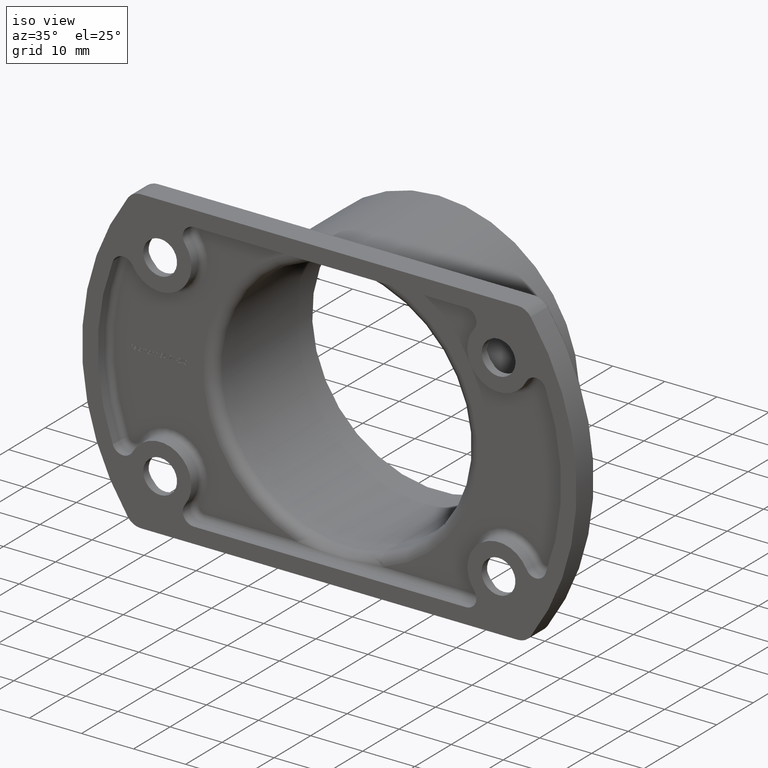
[diagram: clean part render]
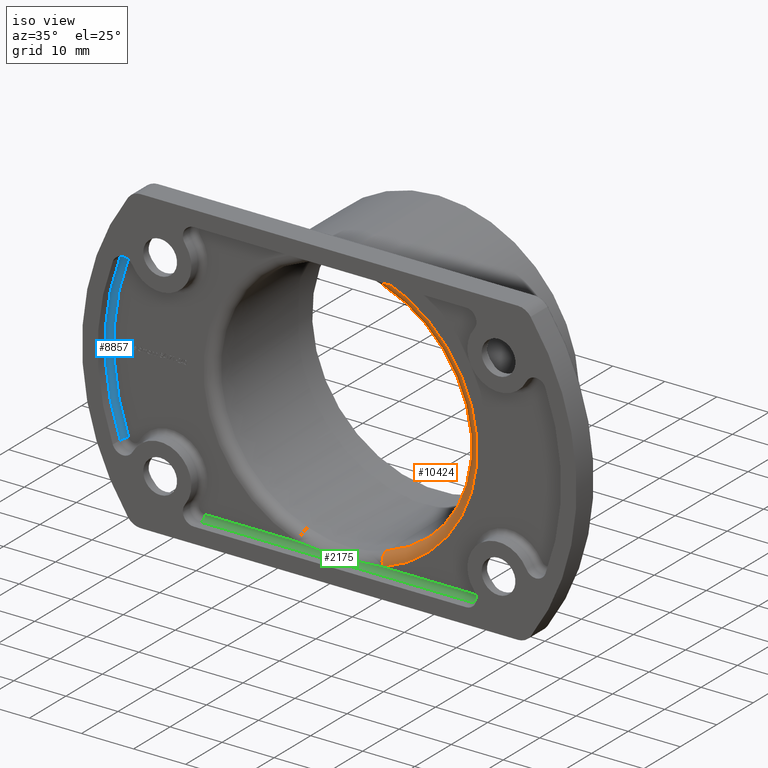
[diagram: same view with three faces highlighted in distinct colors, each labeled with its STEP entity id]
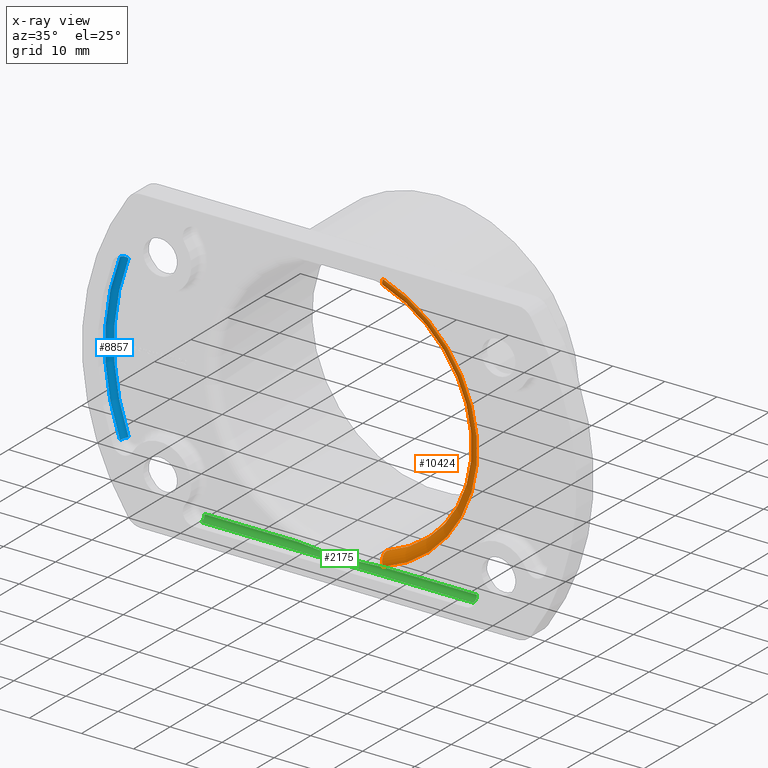
[diagram: x-ray of the same camera — body ghosted, the three highlighted faces saturated]
A machine part, iso view with three faces highlighted in distinct colors.
The next image is the same camera in x-ray (body ghosted, the three faces saturated) — at least one of them is partly hidden behind the body in this view.
Their STEP definitions:

[orange] entity #10424 — the highlighted toroidal blend (fillet) surface has major radius 26.3 mm and minor (blend) radius 2 mm.
#17 = DIRECTION ( 'NONE',  ( -8.881784197001252323E-16, 0.000000000000000000, -1.000000000000000000 ) ) ;
#259 = CARTESIAN_POINT ( 'NONE',  ( 8.166394553289741509, 3.000000000000000000, 24.99999999999999645 ) ) ;
#364 = ORIENTED_EDGE ( 'NONE', *, *, #13438, .F. ) ;
#550 = CARTESIAN_POINT ( 'NONE',  ( 8.166394553289727298, 5.000000000000000000, -24.99999999999999645 ) ) ;
#919 = EDGE_LOOP ( 'NONE', ( #2003, #11204, #8052, #364 ) ) ;
#984 = CARTESIAN_POINT ( 'NONE',  ( 0.000000000000000000, 5.000000000000000888, 0.000000000000000000 ) ) ;
#1272 = CIRCLE ( 'NONE', #8438, 1.999999999999999778 ) ;
#1767 = DIRECTION ( 'NONE',  ( 0.000000000000000000, -1.000000000000000000, 0.000000000000000000 ) ) ;
#2003 = ORIENTED_EDGE ( 'NONE', *, *, #10314, .T. ) ;
#2092 = DIRECTION ( 'NONE',  ( -0.000000000000000000, 1.000000000000000000, -0.000000000000000000 ) ) ;
#2163 = AXIS2_PLACEMENT_3D ( 'NONE', #8005, #1767, #2797 ) ;
#2612 = DIRECTION ( 'NONE',  ( 0.9505703422053231044, -5.386477697977502570E-16, 0.3105092986041723679 ) ) ;
#2689 = TOROIDAL_SURFACE ( 'NONE', #2163, 26.30000000000000426, 2.000000000000000000 ) ;
#2797 = DIRECTION ( 'NONE',  ( 0.000000000000000000, 0.000000000000000000, -1.000000000000000000 ) ) ;
#3918 = DIRECTION ( 'NONE',  ( 0.3105092986041731451, 0.000000000000000000, 0.9505703422053227714 ) ) ;
#4222 = DIRECTION ( 'NONE',  ( 0.000000000000000000, 0.000000000000000000, -1.000000000000000000 ) ) ;
#4603 = CARTESIAN_POINT ( 'NONE',  ( 7.545375956081382895, 5.000000000000000888, -23.09885931558935113 ) ) ;
#4678 = CARTESIAN_POINT ( 'NONE',  ( 7.545375956081393554, 5.000000000000000888, 23.09885931558934757 ) ) ;
#6513 = EDGE_CURVE ( 'NONE', #11804, #10189, #11574, .T. ) ;
#8005 = CARTESIAN_POINT ( 'NONE',  ( 0.000000000000000000, 5.000000000000000888, 0.000000000000000000 ) ) ;
#8049 = VERTEX_POINT ( 'NONE', #4603 ) ;
#8052 = ORIENTED_EDGE ( 'NONE', *, *, #8196, .F. ) ;
#8072 = AXIS2_PLACEMENT_3D ( 'NONE', #9555, #2092, #17 ) ;
#8196 = EDGE_CURVE ( 'NONE', #9639, #11804, #1272, .T. ) ;
#8310 = CIRCLE ( 'NONE', #11813, 24.30000000000000071 ) ;
#8438 = AXIS2_PLACEMENT_3D ( 'NONE', #13165, #13120, #3918 ) ;
#9241 = CIRCLE ( 'NONE', #12467, 1.999999999999999112 ) ;
#9440 = DIRECTION ( 'NONE',  ( 0.000000000000000000, -1.000000000000000000, 0.000000000000000000 ) ) ;
#9555 = CARTESIAN_POINT ( 'NONE',  ( 0.000000000000000000, 3.000000000000000000, 0.000000000000000000 ) ) ;
#9639 = VERTEX_POINT ( 'NONE', #4678 ) ;
#9918 = DIRECTION ( 'NONE',  ( 0.3105092986041723679, 0.000000000000000000, -0.9505703422053231044 ) ) ;
#10189 = VERTEX_POINT ( 'NONE', #12786 ) ;
#10314 = EDGE_CURVE ( 'NONE', #8049, #10189, #9241, .T. ) ;
#10424 = ADVANCED_FACE ( 'NONE', ( #12169 ), #2689, .T. ) ;
#11204 = ORIENTED_EDGE ( 'NONE', *, *, #6513, .F. ) ;
#11574 = CIRCLE ( 'NONE', #8072, 26.30000000000000426 ) ;
#11804 = VERTEX_POINT ( 'NONE', #259 ) ;
#11813 = AXIS2_PLACEMENT_3D ( 'NONE', #984, #9440, #4222 ) ;
#12169 = FACE_OUTER_BOUND ( 'NONE', #919, .T. ) ;
#12467 = AXIS2_PLACEMENT_3D ( 'NONE', #550, #2612, #9918 ) ;
#12786 = CARTESIAN_POINT ( 'NONE',  ( 8.166394553289727298, 3.000000000000000000, -25.00000000000000000 ) ) ;
#13120 = DIRECTION ( 'NONE',  ( -0.9505703422053229934, 5.386477697977507500E-16, 0.3105092986041727565 ) ) ;
#13165 = CARTESIAN_POINT ( 'NONE',  ( 8.166394553289739733, 5.000000000000000888, 24.99999999999999289 ) ) ;
#13438 = EDGE_CURVE ( 'NONE', #8049, #9639, #8310, .T. ) ;

[blue] entity #8857 — the highlighted toroidal blend (fillet) surface has major radius 44 mm and minor (blend) radius 1 mm.
#387 = ORIENTED_EDGE ( 'NONE', *, *, #4611, .F. ) ;
#509 = VERTEX_POINT ( 'NONE', #4135 ) ;
#830 = CARTESIAN_POINT ( 'NONE',  ( 0.5000000000000073275, 2.000000000000000000, -3.122502256758252770E-14 ) ) ;
#896 = ORIENTED_EDGE ( 'NONE', *, *, #4710, .F. ) ;
#1079 = DIRECTION ( 'NONE',  ( 0.000000000000000000, 0.000000000000000000, -1.000000000000000000 ) ) ;
#1365 = AXIS2_PLACEMENT_3D ( 'NONE', #830, #3845, #5891 ) ;
#2011 = VERTEX_POINT ( 'NONE', #10131 ) ;
#2540 = EDGE_CURVE ( 'NONE', #10132, #5435, #2968, .T. ) ;
#2964 = EDGE_CURVE ( 'NONE', #2011, #5435, #7353, .T. ) ;
#2968 = CIRCLE ( 'NONE', #13179, 1.000000000000002220 ) ;
#3398 = ORIENTED_EDGE ( 'NONE', *, *, #2540, .T. ) ;
#3845 = DIRECTION ( 'NONE',  ( 0.000000000000000000, -1.000000000000000000, 0.000000000000000000 ) ) ;
#4056 = DIRECTION ( 'NONE',  ( 0.000000000000000000, -1.000000000000000000, 0.000000000000000000 ) ) ;
#4135 = CARTESIAN_POINT ( 'NONE',  ( -40.66282089980679615, 3.000000000000000000, -15.54420070542160026 ) ) ;
#4147 = EDGE_LOOP ( 'NONE', ( #3398, #4893, #387, #896 ) ) ;
#4611 = EDGE_CURVE ( 'NONE', #509, #2011, #5196, .T. ) ;
#4710 = EDGE_CURVE ( 'NONE', #10132, #509, #6000, .T. ) ;
#4893 = ORIENTED_EDGE ( 'NONE', *, *, #2964, .F. ) ;
#4982 = FACE_OUTER_BOUND ( 'NONE', #4147, .T. ) ;
#5091 = AXIS2_PLACEMENT_3D ( 'NONE', #9944, #8849, #11960 ) ;
#5152 = CARTESIAN_POINT ( 'NONE',  ( 0.5000000000000073275, 2.000000000000000000, -3.122502256758252770E-14 ) ) ;
#5196 = CIRCLE ( 'NONE', #5091, 1.000000000000001776 ) ;
#5435 = VERTEX_POINT ( 'NONE', #9715 ) ;
#5629 = TOROIDAL_SURFACE ( 'NONE', #1365, 44.00000000000000000, 1.000000000000000000 ) ;
#5854 = AXIS2_PLACEMENT_3D ( 'NONE', #5152, #6243, #1079 ) ;
#5891 = DIRECTION ( 'NONE',  ( 0.000000000000000000, 0.000000000000000000, -1.000000000000000000 ) ) ;
#6000 = CIRCLE ( 'NONE', #11906, 44.00000000000000000 ) ;
#6243 = DIRECTION ( 'NONE',  ( -0.000000000000000000, 1.000000000000000000, -0.000000000000000000 ) ) ;
#7353 = CIRCLE ( 'NONE', #5854, 45.00000000000000000 ) ;
#8650 = CARTESIAN_POINT ( 'NONE',  ( -40.66282089980678194, 3.000000000000000000, 15.54420070542157362 ) ) ;
#8849 = DIRECTION ( 'NONE',  ( -0.3532772887595772016, 0.000000000000000000, 0.9355186568137925374 ) ) ;
#8857 = ADVANCED_FACE ( 'NONE', ( #4982 ), #5629, .F. ) ;
#9270 = CARTESIAN_POINT ( 'NONE',  ( 0.5000000000000073275, 3.000000000000000000, -3.122502256758252770E-14 ) ) ;
#9715 = CARTESIAN_POINT ( 'NONE',  ( -41.59833955662057292, 2.000000000000000000, 15.89747799418115370 ) ) ;
#9944 = CARTESIAN_POINT ( 'NONE',  ( -40.66282089980679615, 2.000000000000000000, -15.54420070542160026 ) ) ;
#10131 = CARTESIAN_POINT ( 'NONE',  ( -41.59833955662058713, 2.000000000000000000, -15.89747799418117857 ) ) ;
#10132 = VERTEX_POINT ( 'NONE', #8650 ) ;
#10414 = DIRECTION ( 'NONE',  ( 0.000000000000000000, 0.000000000000000000, -1.000000000000000000 ) ) ;
#11906 = AXIS2_PLACEMENT_3D ( 'NONE', #9270, #4056, #10414 ) ;
#11960 = DIRECTION ( 'NONE',  ( 0.9355186568137924263, 0.000000000000000000, 0.3532772887595772016 ) ) ;
#12245 = CARTESIAN_POINT ( 'NONE',  ( -40.66282089980678194, 2.000000000000000000, 15.54420070542157362 ) ) ;
#13179 = AXIS2_PLACEMENT_3D ( 'NONE', #12245, #13270, #13321 ) ;
#13270 = DIRECTION ( 'NONE',  ( 0.3532772887595801992, -0.000000000000000000, 0.9355186568137912051 ) ) ;
#13321 = DIRECTION ( 'NONE',  ( 0.9355186568137919823, 0.000000000000000000, -0.3532772887595787559 ) ) ;

[green] entity #2175 — the highlighted cylindrical surface (edge-blend (fillet) strip) has radius 1 mm, axis along (1, 0, 0).
#69 = VERTEX_POINT ( 'NONE', #4402 ) ;
#273 = DIRECTION ( 'NONE',  ( 1.000000000000000000, -0.000000000000000000, 0.000000000000000000 ) ) ;
#699 = EDGE_CURVE ( 'NONE', #4299, #69, #9508, .T. ) ;
#961 = CARTESIAN_POINT ( 'NONE',  ( 2.726546648758453095, 2.920409081203906521, -25.39819552564682326 ) ) ;
#969 = ORIENTED_EDGE ( 'NONE', *, *, #5749, .F. ) ;
#1398 = ORIENTED_EDGE ( 'NONE', *, *, #6263, .F. ) ;
#1696 = AXIS2_PLACEMENT_3D ( 'NONE', #11666, #273, #6451 ) ;
#1814 = CARTESIAN_POINT ( 'NONE',  ( 26.25500200160159991, 2.000000000000000000, -25.00000000000000000 ) ) ;
#2059 = B_SPLINE_CURVE_WITH_KNOTS ( 'NONE', 3,
 ( #8089, #12193, #7129, #961, #6114, #5922, #4059, #9275, #5968, #12374 ),
 .UNSPECIFIED., .F., .F.,
 ( 4, 2, 2, 2, 4 ),
 ( 0.000000000000000000, 0.004091177721163233826, 0.008182355442326467651, 0.01227353316348969887, 0.01636471088465293183 ),
 .UNSPECIFIED. ) ;
#2175 = ADVANCED_FACE ( 'NONE', ( #10794 ), #7519, .F. ) ;
#2209 = AXIS2_PLACEMENT_3D ( 'NONE', #6592, #3412, #11850 ) ;
#2840 = DIRECTION ( 'NONE',  ( 1.000000000000000000, -0.000000000000000000, 0.000000000000000000 ) ) ;
#3412 = DIRECTION ( 'NONE',  ( 1.000000000000000000, 0.000000000000000000, 0.000000000000000000 ) ) ;
#3936 = DIRECTION ( 'NONE',  ( 0.000000000000000000, 0.000000000000000000, -1.000000000000000000 ) ) ;
#4059 = CARTESIAN_POINT ( 'NONE',  ( -2.726641587798411592, 2.920411768480568604, -25.39818068317799060 ) ) ;
#4187 = EDGE_CURVE ( 'NONE', #4669, #7443, #11741, .T. ) ;
#4299 = VERTEX_POINT ( 'NONE', #10429 ) ;
#4402 = CARTESIAN_POINT ( 'NONE',  ( -8.166394553289727298, 3.000000000000000000, -25.00000000000000000 ) ) ;
#4512 = ORIENTED_EDGE ( 'NONE', *, *, #699, .F. ) ;
#4618 = ORIENTED_EDGE ( 'NONE', *, *, #10575, .F. ) ;
#4669 = VERTEX_POINT ( 'NONE', #9225 ) ;
#5040 = CIRCLE ( 'NONE', #1696, 1.000000000000000888 ) ;
#5749 = EDGE_CURVE ( 'NONE', #10189, #7443, #12391, .T. ) ;
#5765 = VERTEX_POINT ( 'NONE', #10851 ) ;
#5922 = CARTESIAN_POINT ( 'NONE',  ( -1.364580291582981220, 2.901246482696176354, -25.43330679465470112 ) ) ;
#5968 = CARTESIAN_POINT ( 'NONE',  ( -6.809751863886553735, 3.000000000000008438, -25.14771839292670563 ) ) ;
#6114 = CARTESIAN_POINT ( 'NONE',  ( 1.361509632610039544, 2.901220976281781549, -25.43335984213570100 ) ) ;
#6263 = EDGE_CURVE ( 'NONE', #5765, #4299, #5040, .T. ) ;
#6398 = EDGE_LOOP ( 'NONE', ( #969, #10310, #4512, #1398, #4618, #9215 ) ) ;
#6451 = DIRECTION ( 'NONE',  ( 0.000000000000000000, 0.000000000000000000, -1.000000000000000000 ) ) ;
#6453 = LINE ( 'NONE', #7493, #11838 ) ;
#6592 = CARTESIAN_POINT ( 'NONE',  ( -32.50000000000000000, 2.000000000000000000, -25.00000000000000000 ) ) ;
#7129 = CARTESIAN_POINT ( 'NONE',  ( 5.450146588374153112, 2.969803519726974983, -25.25533054367415531 ) ) ;
#7443 = VERTEX_POINT ( 'NONE', #12399 ) ;
#7455 = DIRECTION ( 'NONE',  ( -1.000000000000000000, -0.000000000000000000, -0.000000000000000000 ) ) ;
#7493 = CARTESIAN_POINT ( 'NONE',  ( -26.04570025872163797, 2.000000000000000000, -26.00000000000000355 ) ) ;
#7519 = CYLINDRICAL_SURFACE ( 'NONE', #2209, 1.000000000000000888 ) ;
#8089 = CARTESIAN_POINT ( 'NONE',  ( 8.166394553289727298, 3.000000000000000000, -25.00000000000000000 ) ) ;
#8841 = AXIS2_PLACEMENT_3D ( 'NONE', #1814, #2840, #3936 ) ;
#9215 = ORIENTED_EDGE ( 'NONE', *, *, #4187, .T. ) ;
#9225 = CARTESIAN_POINT ( 'NONE',  ( 26.25500200160159991, 2.000000000000000000, -26.00000000000000355 ) ) ;
#9253 = EDGE_CURVE ( 'NONE', #10189, #69, #2059, .T. ) ;
#9275 = CARTESIAN_POINT ( 'NONE',  ( -5.448949690513395616, 2.969780848027349318, -25.25540318481368729 ) ) ;
#9508 = LINE ( 'NONE', #11750, #9828 ) ;
#9828 = VECTOR ( 'NONE', #12741, 1000.000000000000000 ) ;
#10189 = VERTEX_POINT ( 'NONE', #12786 ) ;
#10310 = ORIENTED_EDGE ( 'NONE', *, *, #9253, .T. ) ;
#10429 = CARTESIAN_POINT ( 'NONE',  ( -26.04570025872163797, 3.000000000000000000, -25.00000000000000000 ) ) ;
#10575 = EDGE_CURVE ( 'NONE', #4669, #5765, #6453, .T. ) ;
#10764 = DIRECTION ( 'NONE',  ( 1.000000000000000000, 0.000000000000000000, 0.000000000000000000 ) ) ;
#10794 = FACE_OUTER_BOUND ( 'NONE', #6398, .T. ) ;
#10851 = CARTESIAN_POINT ( 'NONE',  ( -26.04570025872163797, 2.000000000000000000, -26.00000000000000355 ) ) ;
#11252 = VECTOR ( 'NONE', #10764, 1000.000000000000000 ) ;
#11666 = CARTESIAN_POINT ( 'NONE',  ( -26.04570025872163797, 2.000000000000000000, -25.00000000000000000 ) ) ;
#11741 = CIRCLE ( 'NONE', #8841, 1.000000000000000888 ) ;
#11750 = CARTESIAN_POINT ( 'NONE',  ( -32.50000000000000000, 3.000000000000000000, -25.00000000000000000 ) ) ;
#11838 = VECTOR ( 'NONE', #7455, 1000.000000000000000 ) ;
#11850 = DIRECTION ( 'NONE',  ( 0.000000000000000000, 0.000000000000000000, -1.000000000000000000 ) ) ;
#12193 = CARTESIAN_POINT ( 'NONE',  ( 6.809418158142867661, 3.000000000000001332, -25.14775472856360139 ) ) ;
#12374 = CARTESIAN_POINT ( 'NONE',  ( -8.166394553289727298, 3.000000000000000000, -25.00000000000000000 ) ) ;
#12391 = LINE ( 'NONE', #12839, #11252 ) ;
#12399 = CARTESIAN_POINT ( 'NONE',  ( 26.25500200160159991, 3.000000000000000000, -25.00000000000000000 ) ) ;
#12741 = DIRECTION ( 'NONE',  ( 1.000000000000000000, 0.000000000000000000, 0.000000000000000000 ) ) ;
#12786 = CARTESIAN_POINT ( 'NONE',  ( 8.166394553289727298, 3.000000000000000000, -25.00000000000000000 ) ) ;
#12839 = CARTESIAN_POINT ( 'NONE',  ( -32.50000000000000000, 3.000000000000000000, -25.00000000000000000 ) ) ;